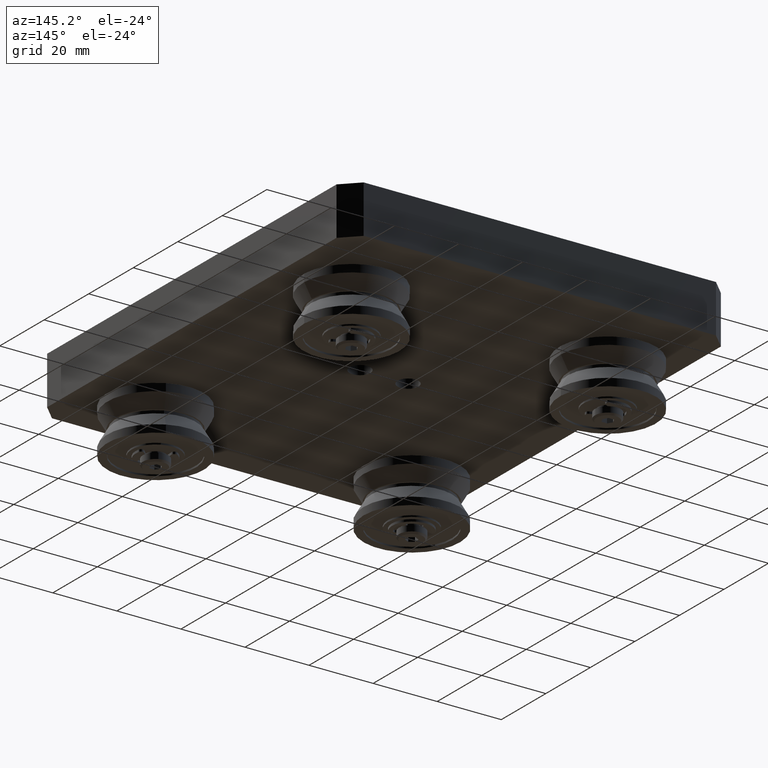
[diagram: clean part render]
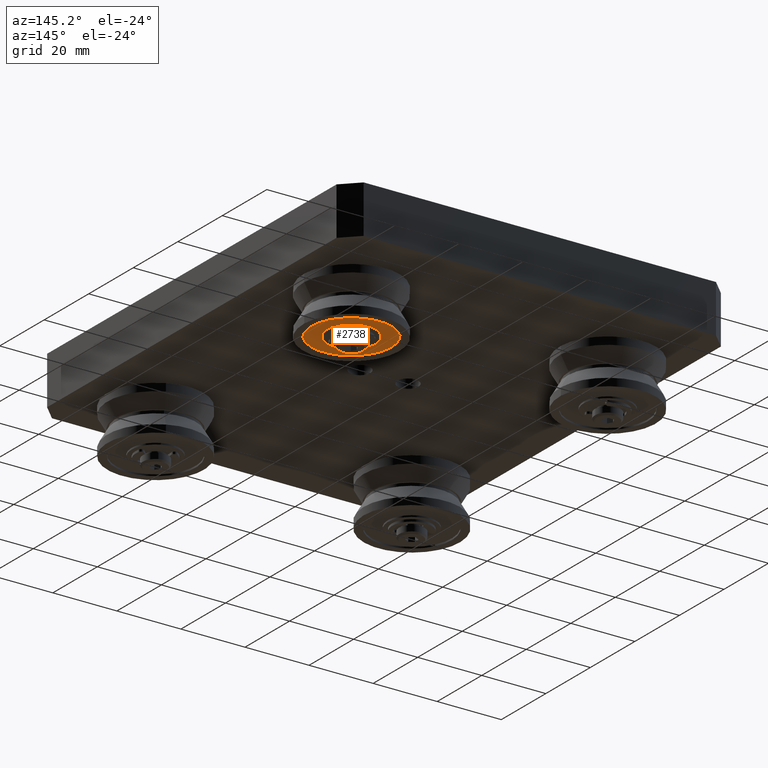
[diagram: same view with one face highlighted and labeled with its STEP entity id]
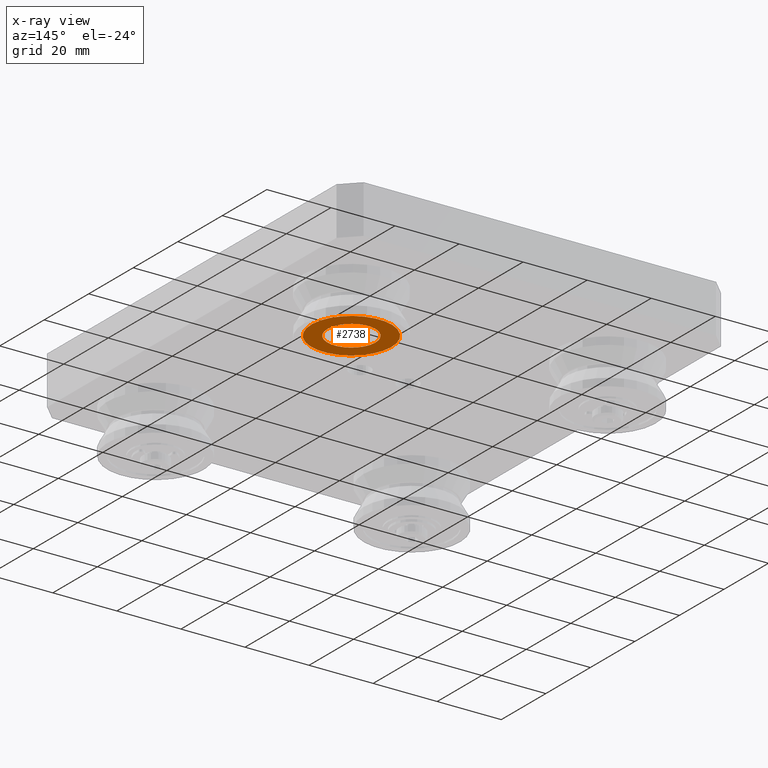
[diagram: x-ray of the same camera — body ghosted, the highlighted face saturated]
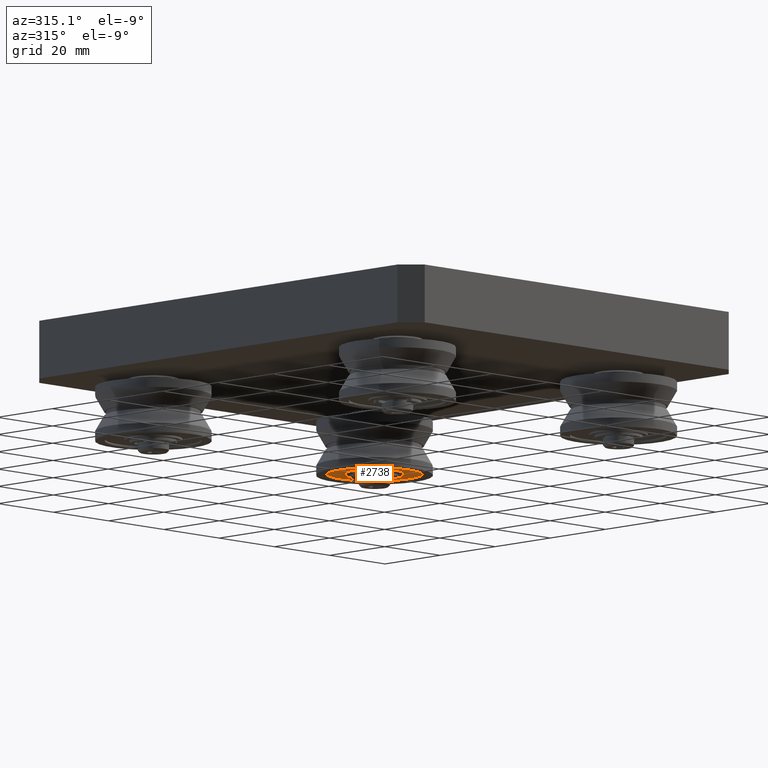
[diagram: same view with one face highlighted and labeled with its STEP entity id]
A machine part, auxiliary view. The second image highlights one B-rep face of the part: STEP entity #2738.
The next image is the same camera in x-ray: the body ghosted, the highlighted face saturated — about 0% of this face is hidden behind the body in this view.
A second angle (auxiliary view) of the same face is appended — the face is thin or edge-on in the first view.
In plain terms, the highlighted planar face has unit normal (0, -0, -1).
Its self-contained STEP definition (entity closure, byte-faithful):
#213=FACE_BOUND('',#684,.T.);
#310=CIRCLE('',#3197,7.5);
#311=CIRCLE('',#3199,12.5);
#481=FACE_OUTER_BOUND('',#683,.T.);
#683=EDGE_LOOP('',(#2276));
#684=EDGE_LOOP('',(#2277));
#1333=VERTEX_POINT('',#4743);
#1334=VERTEX_POINT('',#4747);
#1658=EDGE_CURVE('',#1333,#1333,#310,.T.);
#1660=EDGE_CURVE('',#1334,#1334,#311,.T.);
#2276=ORIENTED_EDGE('',*,*,#1660,.F.);
#2277=ORIENTED_EDGE('',*,*,#1658,.T.);
#2599=PLANE('',#3198);
#2738=ADVANCED_FACE('',(#481,#213),#2599,.T.);
#3197=AXIS2_PLACEMENT_3D('',#4744,#3905,#3906);
#3198=AXIS2_PLACEMENT_3D('',#4746,#3908,#3909);
#3199=AXIS2_PLACEMENT_3D('',#4748,#3910,#3911);
#3905=DIRECTION('center_axis',(1.,0.,0.));
#3906=DIRECTION('ref_axis',(0.,1.,0.));
#3908=DIRECTION('center_axis',(-1.,0.,0.));
#3909=DIRECTION('ref_axis',(0.,0.,1.));
#3910=DIRECTION('center_axis',(1.,0.,0.));
#3911=DIRECTION('ref_axis',(0.,1.,0.));
#4743=CARTESIAN_POINT('',(-6.50000000000002,-7.5,-9.18485099360515E-16));
#4744=CARTESIAN_POINT('Origin',(-6.50000000000002,0.,0.));
#4746=CARTESIAN_POINT('Origin',(-6.50000000000002,10.,0.));
#4747=CARTESIAN_POINT('',(-6.50000000000002,-12.5,-1.53080849893419E-15));
#4748=CARTESIAN_POINT('Origin',(-6.50000000000002,0.,0.));